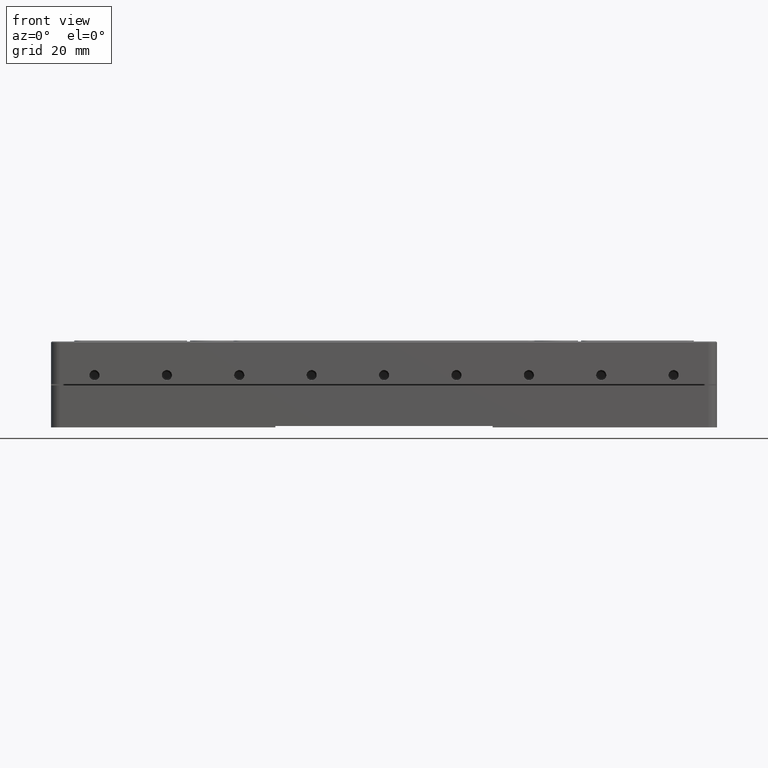
[diagram: clean part render]
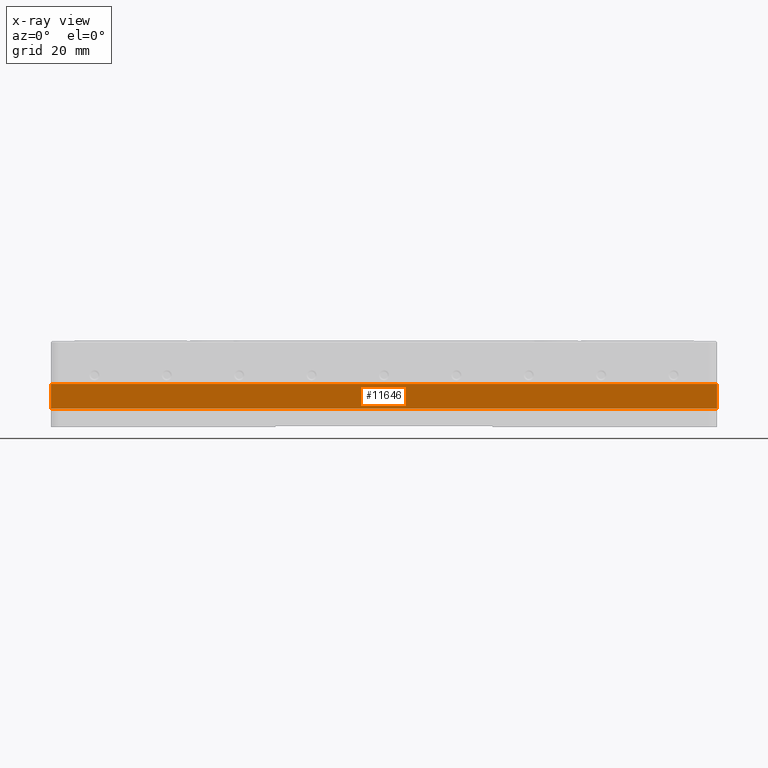
[diagram: x-ray — body ghosted, one internal face saturated and labeled with its STEP entity id]
A machine part, front view, then the same camera in x-ray: the body is ghosted and one INTERNAL B-rep face — a face not visible from any outside direction — is saturated and labeled: STEP entity #11646.
In plain terms, the highlighted planar face has unit normal (0, -1, 0).
Its self-contained STEP definition (entity closure, byte-faithful):
#80 = DIRECTION ( 'NONE',  ( 0.000000000000000000, -1.000000000000000000, 0.000000000000000000 ) ) ;
#442 = CARTESIAN_POINT ( 'NONE',  ( 115.0000000000000000, -39.50000000000000000, -8.000000000000000000 ) ) ;
#816 = AXIS2_PLACEMENT_3D ( 'NONE', #4800, #80, #26291 ) ;
#1649 = VECTOR ( 'NONE', #1963, 1000.000000000000000 ) ;
#1769 = CARTESIAN_POINT ( 'NONE',  ( 115.0000000000000000, -39.50000000000000000, 0.5000000000000000000 ) ) ;
#1963 = DIRECTION ( 'NONE',  ( 0.000000000000000000, 0.000000000000000000, -1.000000000000000000 ) ) ;
#2517 = PLANE ( 'NONE',  #816 ) ;
#3141 = EDGE_CURVE ( 'NONE', #15675, #28121, #6960, .T. ) ;
#4800 = CARTESIAN_POINT ( 'NONE',  ( -115.0000000000000000, -39.50000000000000000, 0.5000000000000000000 ) ) ;
#6650 = EDGE_LOOP ( 'NONE', ( #15225, #13034, #14230, #15811 ) ) ;
#6800 = FACE_OUTER_BOUND ( 'NONE', #6650, .T. ) ;
#6960 = LINE ( 'NONE', #15496, #1649 ) ;
#7951 = VECTOR ( 'NONE', #25307, 1000.000000000000000 ) ;
#8785 = LINE ( 'NONE', #10920, #21093 ) ;
#9570 = CARTESIAN_POINT ( 'NONE',  ( -115.0000000000000000, -39.50000000000000000, 0.5000000000000000000 ) ) ;
#10920 = CARTESIAN_POINT ( 'NONE',  ( -115.0000000000000000, -39.50000000000000000, 0.000000000000000000 ) ) ;
#11646 = ADVANCED_FACE ( 'NONE', ( #6800 ), #2517, .T. ) ;
#13034 = ORIENTED_EDGE ( 'NONE', *, *, #24917, .T. ) ;
#13327 = EDGE_CURVE ( 'NONE', #28121, #26671, #26951, .T. ) ;
#14230 = ORIENTED_EDGE ( 'NONE', *, *, #23726, .T. ) ;
#15225 = ORIENTED_EDGE ( 'NONE', *, *, #3141, .F. ) ;
#15496 = CARTESIAN_POINT ( 'NONE',  ( 115.0000000000000000, -39.50000000000000000, 0.000000000000000000 ) ) ;
#15675 = VERTEX_POINT ( 'NONE', #1769 ) ;
#15811 = ORIENTED_EDGE ( 'NONE', *, *, #13327, .F. ) ;
#16139 = CARTESIAN_POINT ( 'NONE',  ( -115.0000000000000000, -39.50000000000000000, -8.000000000000000000 ) ) ;
#16628 = CARTESIAN_POINT ( 'NONE',  ( -115.0000000000000000, -39.50000000000000000, 0.5000000000000000000 ) ) ;
#17484 = DIRECTION ( 'NONE',  ( 0.000000000000000000, 0.000000000000000000, -1.000000000000000000 ) ) ;
#18622 = CARTESIAN_POINT ( 'NONE',  ( -115.0000000000000000, -39.50000000000000000, -8.000000000000000000 ) ) ;
#18761 = LINE ( 'NONE', #16628, #7951 ) ;
#19892 = VERTEX_POINT ( 'NONE', #9570 ) ;
#21093 = VECTOR ( 'NONE', #17484, 1000.000000000000000 ) ;
#22686 = DIRECTION ( 'NONE',  ( -1.000000000000000000, 0.000000000000000000, -0.000000000000000000 ) ) ;
#23726 = EDGE_CURVE ( 'NONE', #19892, #26671, #8785, .T. ) ;
#24569 = VECTOR ( 'NONE', #22686, 1000.000000000000000 ) ;
#24917 = EDGE_CURVE ( 'NONE', #15675, #19892, #18761, .T. ) ;
#25307 = DIRECTION ( 'NONE',  ( -1.000000000000000000, -0.000000000000000000, -0.000000000000000000 ) ) ;
#26291 = DIRECTION ( 'NONE',  ( 0.000000000000000000, -0.000000000000000000, -1.000000000000000000 ) ) ;
#26671 = VERTEX_POINT ( 'NONE', #18622 ) ;
#26951 = LINE ( 'NONE', #16139, #24569 ) ;
#28121 = VERTEX_POINT ( 'NONE', #442 ) ;